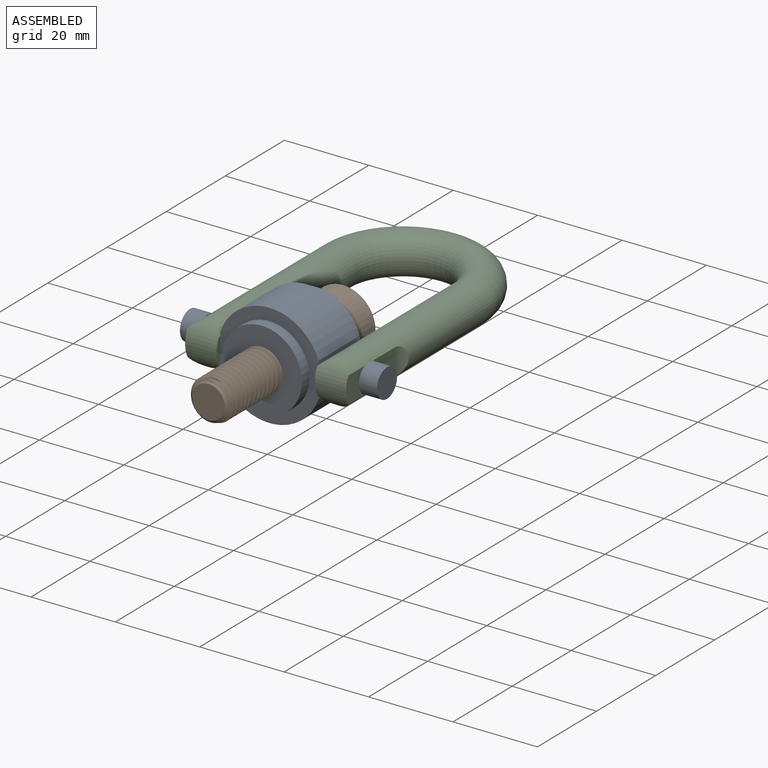
[diagram: assembled view]
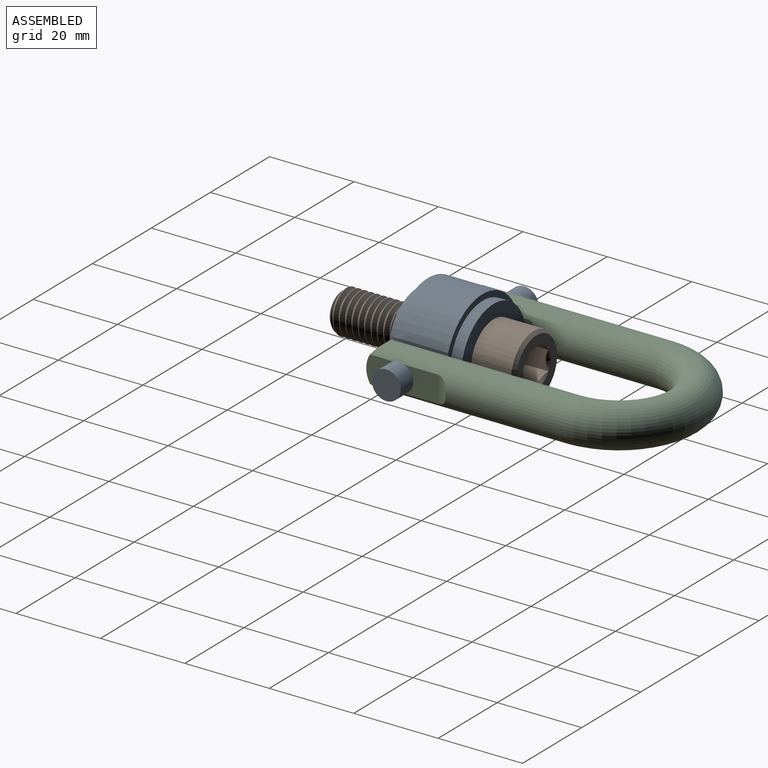
[diagram: assembled view, second angle]
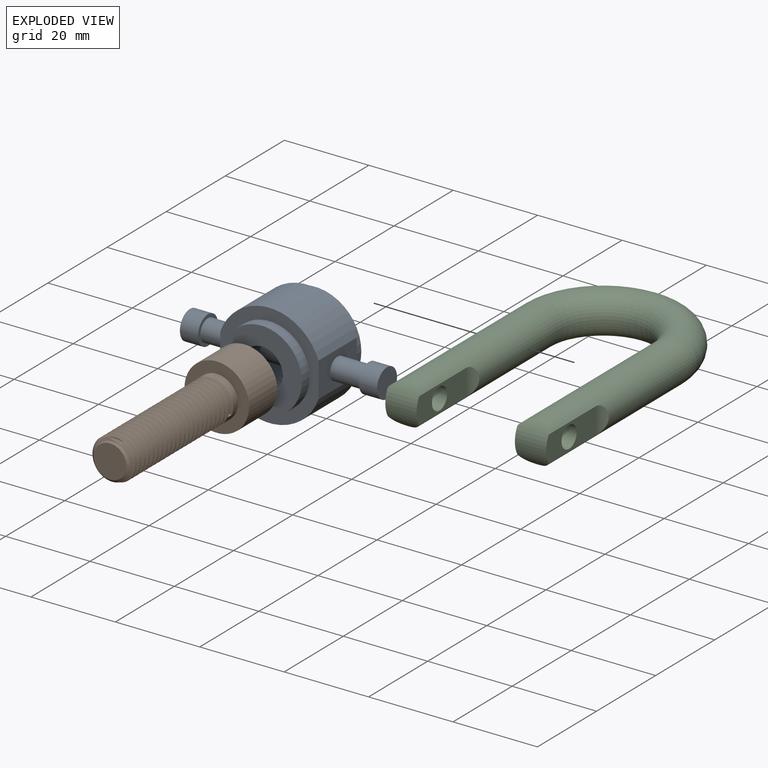
[diagram: exploded view]
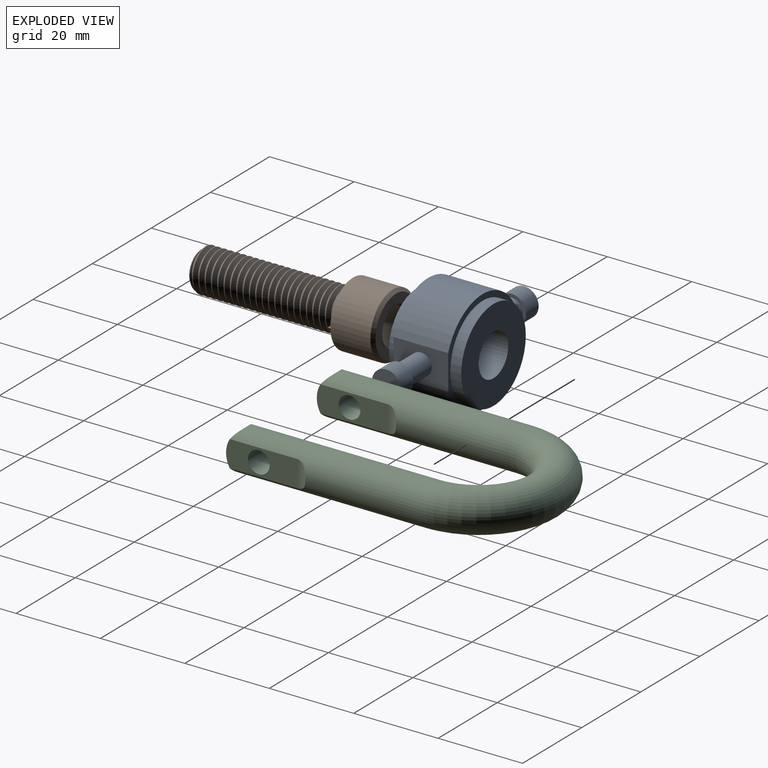
[diagram: exploded view, second angle]
ASSEMBLY  parts=3 mates=4
PART A: 20 faces, bbox 46.7x18.1x24.7 mm
  f0: cylinder r=2.57mm len=10mm, axis (-1,0,0), area 150mm2, adj f7
  f1: cylinder r=2.57mm len=7.42mm, axis (-1,0,0), area 119.8mm2, adj f8,f18
  f2: cylinder r=3.4mm len=6.79mm, axis (-1,0,0), area 91.5mm2, adj f18,f19
  f3: cylinder r=2.57mm len=7.42mm, axis (-1,0,0), area 119.8mm2, adj f9,f17
  f4: cylinder r=3.4mm len=6.79mm, axis (-1,0,0), area 91.5mm2, adj f16,f17
  f5: cylinder r=10.93mm len=21.85mm, axis (0,-1,0), area 177.5mm2, adj f13,f14
  f6: cylinder r=9.5mm len=19mm, axis (0,-1,0), area 154.3mm2, adj f10,f15
  f7: cylinder r=5mm len=18.1mm, axis (0,-1,0), area 540.9mm2, adj f0,f14,f15
  f8: plane 12.93x8.27mm, normal (1,0,0), area 86.2mm2, adj f1,f10,f11,f12,f13
  f9: plane 12.93x8.27mm, normal (-1,0,0), area 86.2mm2, adj f3,f10,f11,f12,f13
  f10: plane 24.71x23.28mm, normal (0,-1,0), area 188mm2, adj f6,f8,f9,f11,f12
  f11: cylinder r=12.35mm len=23.28mm, axis (0,-1,0), area 392.7mm2, adj f8,f9,f10,f13
  f12: cylinder r=12.35mm len=23.28mm, axis (0,-1,0), area 392.7mm2, adj f8,f9,f10,f13
  f13: plane 24.71x23.28mm, normal (0,1,0), area 96.4mm2, adj f5,f8,f9,f11,f12
  f14: plane 21.85x21.85mm, normal (0,1,0), area 296.5mm2, adj f5,f7
  f15: plane 19x19mm, normal (0,-1,0), area 205mm2, adj f6,f7
  f16: plane 6.79x6.79mm, normal (-1,0,0), area 36.2mm2, adj f4
  f17: plane 6.79x6.79mm, normal (1,0,0), area 15.5mm2, adj f3,f4
  f18: plane 6.79x6.79mm, normal (-1,0,0), area 15.5mm2, adj f1,f2
  f19: plane 6.79x6.79mm, normal (1,0,0), area 36.2mm2, adj f2
PART B: 46 faces, bbox 15.7x47.2x15.7 mm
  f0: cone r=7.65mm half-angle=45deg, axis (0,-1,0), area 46.3mm2, adj f2,f27
  f1: cone r=4.62mm half-angle=45deg, axis (0,1,0), area 2mm2, adj f27,f43
  f2: cylinder r=7.65mm len=15.3mm, axis (0,-1,0), area 456mm2, adj f0,f29
  f3: cone r=3.88mm half-angle=45deg, axis (0,1,0), area 24.3mm2, adj f26,f28,f30,f31,f32
  f4: cylinder r=5mm len=10mm, axis (0,-1,0), area 71.1mm2, adj f5,f29,f30,f32,f33
  f5: cylinder r=5mm len=10mm, axis (0,-1,0), area 5.9mm2, adj f4,f6,f30,f32
  f6: cylinder r=5mm len=10mm, axis (0,-1,0), area 5.9mm2, adj f5,f7,f30,f32
  f7: cylinder r=5mm len=10mm, axis (0,-1,0), area 5.9mm2, adj f6,f8,f30,f32
  f8: cylinder r=5mm len=10mm, axis (0,-1,0), area 5.9mm2, adj f7,f9,f30,f32
  f9: cylinder r=5mm len=10mm, axis (0,-1,0), area 5.9mm2, adj f8,f10,f30,f32
  f10: cylinder r=5mm len=10mm, axis (0,-1,0), area 5.9mm2, adj f9,f11,f30,f32
  f11: cylinder r=5mm len=10mm, axis (0,-1,0), area 5.9mm2, adj f10,f12,f30,f32
  f12: cylinder r=5mm len=10mm, axis (0,-1,0), area 5.9mm2, adj f11,f13,f30,f32
  f13: cylinder r=5mm len=10mm, axis (0,-1,0), area 5.9mm2, adj f12,f14,f30,f32
  f14: cylinder r=5mm len=10mm, axis (0,-1,0), area 5.9mm2, adj f13,f15,f30,f32
  f15: cylinder r=5mm len=10mm, axis (0,-1,0), area 5.9mm2, adj f14,f16,f30,f32
  f16: cylinder r=5mm len=10mm, axis (0,-1,0), area 5.9mm2, adj f15,f17,f30,f32
  f17: cylinder r=5mm len=10mm, axis (0,-1,0), area 5.9mm2, adj f16,f18,f30,f32
  f18: cylinder r=5mm len=10mm, axis (0,-1,0), area 5.9mm2, adj f17,f19,f30,f32
  f19: cylinder r=5mm len=10mm, axis (0,-1,0), area 5.9mm2, adj f18,f20,f30,f32
  f20: cylinder r=5mm len=10mm, axis (0,-1,0), area 5.9mm2, adj f19,f21,f30,f32
  f21: cylinder r=5mm len=10mm, axis (0,-1,0), area 5.9mm2, adj f20,f22,f30,f32
  f22: cylinder r=5mm len=10mm, axis (0,-1,0), area 5.9mm2, adj f21,f23,f30,f32
  f23: cylinder r=5mm len=10mm, axis (0,-1,0), area 5.9mm2, adj f22,f24,f30,f32
  f24: cylinder r=5mm len=10mm, axis (0,-1,0), area 5.9mm2, adj f23,f25,f30,f32
  f25: cylinder r=5mm len=10mm, axis (0,-1,0), area 5.9mm2, adj f24,f26,f30,f32
  f26: cylinder r=5mm len=8.54mm, axis (0,-1,0), area 1.8mm2, adj f3,f25,f30,f32
  f27: plane 13.87x13.87mm, normal (0,1,0), area 84.1mm2, adj f0,f1,f34,f35,f36,f37,f38
  f28: plane 7.75x7.75mm, normal (0,-1,0), area 47.2mm2, adj f3
  f29: plane 15.3x15.3mm, normal (0,-1,0), area 105.3mm2, adj f2,f4
  f30: bspline ~34.6x10mm, area 716.1mm2, adj f3,f4,f5,f6,f7,f8,f9,f10
  f31: bspline ~34.07x8.04mm, area 106.9mm2, adj f3,f30,f32,f33
  f32: bspline ~34.26x9.94mm, area 700.4mm2, adj f3,f4,f5,f6,f7,f8,f9,f10
  f33: plane 1.31x0.89mm, normal (0.41,0,0.91), area 0.7mm2, adj f4,f30,f31,f32
  f34: cone r=4.62mm half-angle=45deg, axis (0,1,0), area 2.7mm2, adj f27,f40
  f35: cone r=4.62mm half-angle=45deg, axis (0,1,0), area 2.7mm2, adj f27,f41
  f36: cone r=4.62mm half-angle=45deg, axis (0,1,0), area 2.7mm2, adj f27,f42
  f37: cone r=4.62mm half-angle=45deg, axis (0,1,0), area 2.7mm2, adj f27,f44
  f38: cone r=4.62mm half-angle=45deg, axis (0,1,0), area 2.7mm2, adj f27,f45
  f39: plane 9.24x8mm, normal (0,1,0), area 55.4mm2, adj f40,f41,f42,f43,f44,f45
  f40: plane 5.6x4.62mm, normal (-1,0,0), area 24mm2, adj f34,f39,f41,f45
  f41: plane 5.6x4mm, normal (-0.5,0,0.87), area 24mm2, adj f35,f39,f40,f42
  f42: plane 5.6x4mm, normal (0.5,0,0.87), area 24mm2, adj f36,f39,f41,f43
  f43: plane 6.05x5.07mm, normal (1,0,0), area 24mm2, adj f1,f39,f42,f44
  f44: plane 5.6x4mm, normal (0.5,0,-0.87), area 24mm2, adj f37,f39,f43,f45
  f45: plane 5.6x4mm, normal (-0.5,0,-0.87), area 24mm2, adj f38,f39,f40,f44
PART C: 15 faces, bbox 43.7x68.4x9.7 mm
  f0: torus R=15.35mm, axis (0,0,-1), area 1469.5mm2, adj f3,f4
  f1: cylinder r=2.57mm len=7.42mm, axis (1,0,0), area 119.8mm2, adj f5,f8
  f2: cylinder r=2.57mm len=7.42mm, axis (1,0,0), area 119.8mm2, adj f9,f11
  f3: cylinder r=4.85mm len=45.64mm, axis (0,-1,0), area 1128.7mm2, adj f0,f9,f10,f11,f12,f13
  f4: cylinder r=4.85mm len=45.64mm, axis (0,-1,0), area 1131.5mm2, adj f0,f5,f6,f7,f8,f14
  f5: plane 16.81x6.25mm, normal (-1,0,0), area 82.5mm2, adj f1,f4,f6,f14
  f6: cylinder r=3.89mm len=6.25mm, axis (0,0,-1), area 15.1mm2, adj f4,f5
  f7: cylinder r=3.89mm len=6.25mm, axis (0,0,-1), area 15.1mm2, adj f4,f8
  f8: plane 16.81x6.25mm, normal (1,0,0), area 82.5mm2, adj f1,f4,f7,f14
  f9: plane 16.81x6.25mm, normal (1,0,0), area 82.5mm2, adj f2,f3,f10,f13
  f10: cylinder r=3.89mm len=6.25mm, axis (0,0,-1), area 15.1mm2, adj f3,f9
  f11: plane 16.81x6.25mm, normal (-1,0,0), area 82.5mm2, adj f2,f3,f12,f13
  f12: cylinder r=3.89mm len=6.25mm, axis (0,0,-1), area 15.1mm2, adj f3,f11
  f13: cylinder r=6.06mm len=9.7mm, axis (1,0,0), area 72mm2, adj f3,f9,f11
  f14: cylinder r=6.06mm len=9.7mm, axis (1,0,0), area 66.1mm2, adj f4,f5,f8
PLACE A t=(13.94,-13.24,16.08)mm
PLACE B t=(13.94,-13.24,16.08)mm
PLACE C t=(13.94,-13.24,16.08)mm
MATE planar C.f8 <-> A.f9  axis (1,0,0) through (2.3,4.86,19.2)mm
MATE planar B.f0 <-> A.f5  axis (0,-1,0) through (13.94,4.86,16.08)mm
MATE cylindrical C.f1 <-> A.f0  axis (1,0,0) through (-1.41,-4.19,16.08)mm
MATE cylindrical B.f2 <-> A.f5  axis (0,-1,0) through (13.94,9.6,16.08)mm
